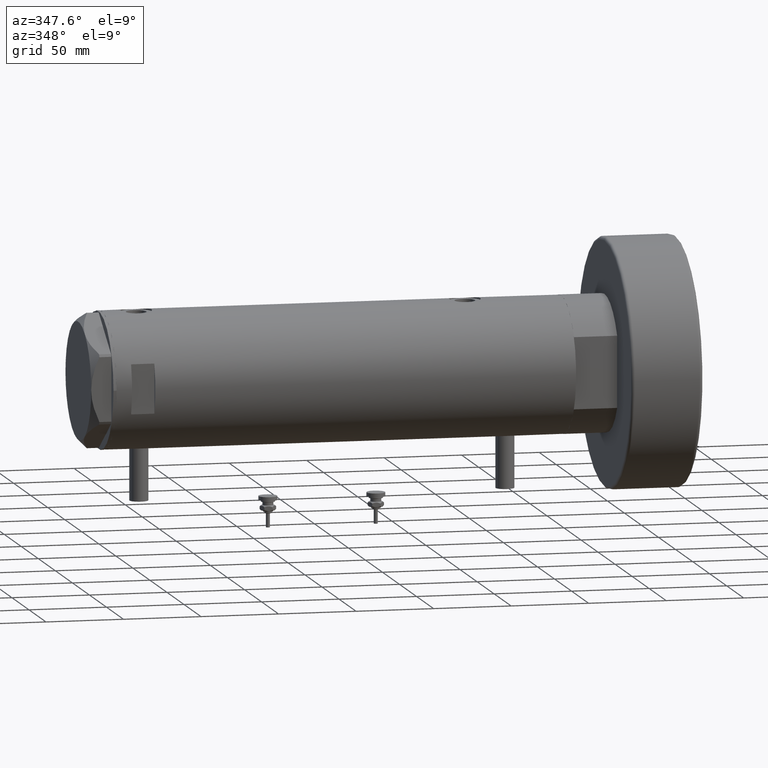
[diagram: clean part render]
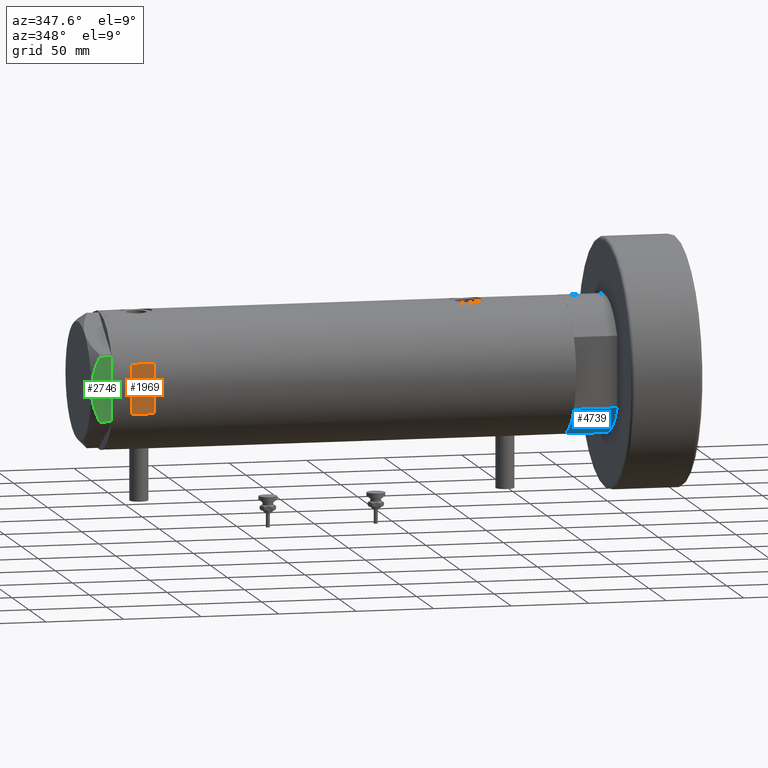
[diagram: same view with three faces highlighted in distinct colors, each labeled with its STEP entity id]
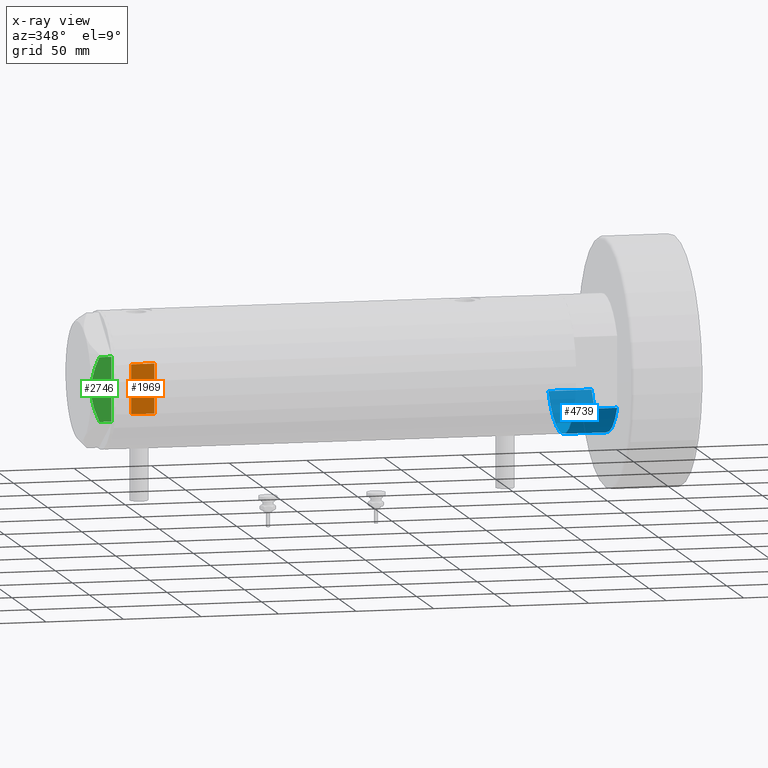
[diagram: x-ray of the same camera — body ghosted, the three highlighted faces saturated]
A machine part, auxiliary view with three faces highlighted in distinct colors.
The next image is the same camera in x-ray (body ghosted, the three faces saturated) — at least one of them is partly hidden behind the body in this view.
Their STEP definitions:

[orange] entity #1969 — the highlighted planar face has unit normal (-0, 1, 0).
#2 = VERTEX_POINT ( 'NONE', #5575 ) ;
#226 = EDGE_CURVE ( 'NONE', #2, #5331, #5549, .T. ) ;
#390 = CARTESIAN_POINT ( 'NONE',  ( 15.96871942267132027, -40.99999999999999289, 123.1999999999999744 ) ) ;
#574 = LINE ( 'NONE', #4498, #846 ) ;
#713 = AXIS2_PLACEMENT_3D ( 'NONE', #1264, #1226, #5192 ) ;
#840 = LINE ( 'NONE', #6233, #3529 ) ;
#842 = FACE_OUTER_BOUND ( 'NONE', #3680, .T. ) ;
#846 = VECTOR ( 'NONE', #4428, 1000.000000000000000 ) ;
#1130 = CARTESIAN_POINT ( 'NONE',  ( -15.96871942267132027, -40.99999999999999289, -148.1999999999999886 ) ) ;
#1191 = LINE ( 'NONE', #1684, #3412 ) ;
#1226 = DIRECTION ( 'NONE',  ( 0.000000000000000000, 1.000000000000000000, 0.000000000000000000 ) ) ;
#1264 = CARTESIAN_POINT ( 'NONE',  ( -44.00000000000000000, -40.99999999999999289, 138.1999999999999886 ) ) ;
#1374 = ORIENTED_EDGE ( 'NONE', *, *, #3612, .T. ) ;
#1684 = CARTESIAN_POINT ( 'NONE',  ( -44.00000000000000000, -40.99999999999999289, 123.1999999999999886 ) ) ;
#1969 = ADVANCED_FACE ( 'NONE', ( #842 ), #6139, .F. ) ;
#2763 = VERTEX_POINT ( 'NONE', #5572 ) ;
#2845 = ORIENTED_EDGE ( 'NONE', *, *, #5056, .T. ) ;
#2908 = CARTESIAN_POINT ( 'NONE',  ( -15.96871942267132027, -40.99999999999999289, 123.1999999999999744 ) ) ;
#3112 = DIRECTION ( 'NONE',  ( -0.000000000000000000, -0.000000000000000000, -1.000000000000000000 ) ) ;
#3174 = DIRECTION ( 'NONE',  ( 1.000000000000000000, -0.000000000000000000, -0.000000000000000000 ) ) ;
#3412 = VECTOR ( 'NONE', #5489, 1000.000000000000000 ) ;
#3529 = VECTOR ( 'NONE', #3174, 1000.000000000000000 ) ;
#3612 = EDGE_CURVE ( 'NONE', #5331, #3935, #1191, .T. ) ;
#3680 = EDGE_LOOP ( 'NONE', ( #5887, #1374, #2845, #3753 ) ) ;
#3753 = ORIENTED_EDGE ( 'NONE', *, *, #6126, .F. ) ;
#3935 = VERTEX_POINT ( 'NONE', #390 ) ;
#4297 = VECTOR ( 'NONE', #3112, 1000.000000000000000 ) ;
#4428 = DIRECTION ( 'NONE',  ( 0.000000000000000000, 0.000000000000000000, 1.000000000000000000 ) ) ;
#4498 = CARTESIAN_POINT ( 'NONE',  ( 15.96871942267132027, -40.99999999999999289, -148.1999999999999886 ) ) ;
#5056 = EDGE_CURVE ( 'NONE', #3935, #2763, #574, .T. ) ;
#5192 = DIRECTION ( 'NONE',  ( 0.000000000000000000, -0.000000000000000000, 1.000000000000000000 ) ) ;
#5331 = VERTEX_POINT ( 'NONE', #2908 ) ;
#5489 = DIRECTION ( 'NONE',  ( 1.000000000000000000, -0.000000000000000000, -0.000000000000000000 ) ) ;
#5549 = LINE ( 'NONE', #1130, #4297 ) ;
#5572 = CARTESIAN_POINT ( 'NONE',  ( 15.96871942267132027, -40.99999999999999289, 138.1999999999999886 ) ) ;
#5575 = CARTESIAN_POINT ( 'NONE',  ( -15.96871942267132027, -40.99999999999999289, 138.1999999999999886 ) ) ;
#5887 = ORIENTED_EDGE ( 'NONE', *, *, #226, .T. ) ;
#6126 = EDGE_CURVE ( 'NONE', #2, #2763, #840, .T. ) ;
#6139 = PLANE ( 'NONE',  #713 ) ;
#6233 = CARTESIAN_POINT ( 'NONE',  ( -44.00000000000000000, -40.99999999999999289, 138.1999999999999886 ) ) ;

[blue] entity #4739 — the highlighted cylindrical surface (partial cylindrical patch) has radius 44 mm, axis along (-1, -0, 0).
#3 = CARTESIAN_POINT ( 'NONE',  ( 23.01629857296780557, 37.50000000000000000, 0.000000000000000000 ) ) ;
#461 = VERTEX_POINT ( 'NONE', #4196 ) ;
#593 = EDGE_CURVE ( 'NONE', #785, #461, #1192, .T. ) ;
#711 = DIRECTION ( 'NONE',  ( -0.000000000000000000, -0.000000000000000000, 1.000000000000000000 ) ) ;
#785 = VERTEX_POINT ( 'NONE', #3 ) ;
#1192 = LINE ( 'NONE', #1651, #6262 ) ;
#1354 = DIRECTION ( 'NONE',  ( 1.000000000000000000, 0.000000000000000000, 0.000000000000000000 ) ) ;
#1386 = CARTESIAN_POINT ( 'NONE',  ( 23.01629857296780557, -37.50000000000000000, 0.000000000000000000 ) ) ;
#1651 = CARTESIAN_POINT ( 'NONE',  ( 23.01629857296780557, 37.50000000000000000, 0.000000000000000000 ) ) ;
#1669 = CYLINDRICAL_SURFACE ( 'NONE', #1994, 44.00000000000000000 ) ;
#1994 = AXIS2_PLACEMENT_3D ( 'NONE', #3641, #5601, #3157 ) ;
#2082 = CIRCLE ( 'NONE', #6086, 44.00000000000000000 ) ;
#2374 = VECTOR ( 'NONE', #6338, 1000.000000000000000 ) ;
#2747 = CARTESIAN_POINT ( 'NONE',  ( 23.01629857296780557, -37.50000000000000000, 27.89999999999999858 ) ) ;
#2901 = VERTEX_POINT ( 'NONE', #6315 ) ;
#3157 = DIRECTION ( 'NONE',  ( -1.000000000000000000, 0.000000000000000000, 0.000000000000000000 ) ) ;
#3224 = EDGE_CURVE ( 'NONE', #2901, #785, #5990, .T. ) ;
#3327 = ORIENTED_EDGE ( 'NONE', *, *, #3998, .F. ) ;
#3370 = EDGE_CURVE ( 'NONE', #2901, #6066, #4844, .T. ) ;
#3487 = DIRECTION ( 'NONE',  ( 1.000000000000000000, 0.000000000000000000, 0.000000000000000000 ) ) ;
#3495 = EDGE_LOOP ( 'NONE', ( #3327, #5172, #5847, #6243 ) ) ;
#3608 = DIRECTION ( 'NONE',  ( 0.000000000000000000, 0.000000000000000000, 1.000000000000000000 ) ) ;
#3641 = CARTESIAN_POINT ( 'NONE',  ( 0.000000000000000000, 0.000000000000000000, 27.89999999999999858 ) ) ;
#3998 = EDGE_CURVE ( 'NONE', #6066, #461, #2082, .T. ) ;
#4196 = CARTESIAN_POINT ( 'NONE',  ( 23.01629857296780557, 37.50000000000000000, 27.89999999999999858 ) ) ;
#4739 = ADVANCED_FACE ( 'NONE', ( #6085 ), #1669, .T. ) ;
#4844 = LINE ( 'NONE', #1386, #2374 ) ;
#4847 = AXIS2_PLACEMENT_3D ( 'NONE', #5751, #6141, #1354 ) ;
#5172 = ORIENTED_EDGE ( 'NONE', *, *, #3370, .F. ) ;
#5537 = CARTESIAN_POINT ( 'NONE',  ( 0.000000000000000000, 0.000000000000000000, 27.89999999999999858 ) ) ;
#5601 = DIRECTION ( 'NONE',  ( -0.000000000000000000, -0.000000000000000000, -1.000000000000000000 ) ) ;
#5751 = CARTESIAN_POINT ( 'NONE',  ( 0.000000000000000000, 0.000000000000000000, 0.000000000000000000 ) ) ;
#5847 = ORIENTED_EDGE ( 'NONE', *, *, #3224, .T. ) ;
#5990 = CIRCLE ( 'NONE', #4847, 44.00000000000000000 ) ;
#6066 = VERTEX_POINT ( 'NONE', #2747 ) ;
#6085 = FACE_OUTER_BOUND ( 'NONE', #3495, .T. ) ;
#6086 = AXIS2_PLACEMENT_3D ( 'NONE', #5537, #3608, #3487 ) ;
#6141 = DIRECTION ( 'NONE',  ( 0.000000000000000000, 0.000000000000000000, 1.000000000000000000 ) ) ;
#6243 = ORIENTED_EDGE ( 'NONE', *, *, #593, .T. ) ;
#6262 = VECTOR ( 'NONE', #711, 1000.000000000000000 ) ;
#6315 = CARTESIAN_POINT ( 'NONE',  ( 23.01629857296780557, -37.50000000000000000, 0.000000000000000000 ) ) ;
#6338 = DIRECTION ( 'NONE',  ( -0.000000000000000000, -0.000000000000000000, 1.000000000000000000 ) ) ;

[green] entity #2746 — the highlighted planar face has unit normal (-0, 1, 0).
#70 = DIRECTION ( 'NONE',  ( 3.183713056926429451E-16, -1.000000000000000000, 0.000000000000000000 ) ) ;
#129 = CARTESIAN_POINT ( 'NONE',  ( -37.75000000000000711, 21.79497266190837124, 13.00000000000000000 ) ) ;
#216 = CARTESIAN_POINT ( 'NONE',  ( -37.74999999999999289, -12.34877760086739862, 11.06613894200179260 ) ) ;
#280 = CARTESIAN_POINT ( 'NONE',  ( -37.75000000000000000, -17.40390235304479205, 9.187919079516763787 ) ) ;
#375 = CARTESIAN_POINT ( 'NONE',  ( -37.75000000000000000, -19.86857906850810096, 8.096480699986589258 ) ) ;
#449 = VERTEX_POINT ( 'NONE', #3248 ) ;
#618 = CARTESIAN_POINT ( 'NONE',  ( -37.75000000000000711, 21.79497266190837124, 0.000000000000000000 ) ) ;
#696 = CARTESIAN_POINT ( 'NONE',  ( -37.75000000000000000, -4.503994958793054337, 12.74237531377022670 ) ) ;
#776 = CARTESIAN_POINT ( 'NONE',  ( -37.74999999999999289, 11.46926194450821690, 11.30493988086503521 ) ) ;
#784 = LINE ( 'NONE', #1319, #2061 ) ;
#851 = CARTESIAN_POINT ( 'NONE',  ( -37.74999999999999289, -20.67497266190838090, 7.709124142616975206 ) ) ;
#1092 = ORIENTED_EDGE ( 'NONE', *, *, #5504, .T. ) ;
#1218 = CARTESIAN_POINT ( 'NONE',  ( -37.75000000000000000, 17.42329546264825524, 9.202188366597436442 ) ) ;
#1319 = CARTESIAN_POINT ( 'NONE',  ( -37.75000000000000711, 20.67497266190837024, 13.00000000000000000 ) ) ;
#1453 = ORIENTED_EDGE ( 'NONE', *, *, #2155, .T. ) ;
#1455 = DIRECTION ( 'NONE',  ( 0.000000000000000000, 0.000000000000000000, 1.000000000000000000 ) ) ;
#1534 = VECTOR ( 'NONE', #1455, 1000.000000000000000 ) ;
#1550 = EDGE_CURVE ( 'NONE', #3051, #1895, #2741, .T. ) ;
#1561 = VECTOR ( 'NONE', #70, 1000.000000000000000 ) ;
#1579 = ORIENTED_EDGE ( 'NONE', *, *, #2391, .F. ) ;
#1607 = PLANE ( 'NONE',  #5882 ) ;
#1666 = CARTESIAN_POINT ( 'NONE',  ( -37.75000000000000000, -0.9015134592203577490, 13.00000000000000178 ) ) ;
#1716 = CARTESIAN_POINT ( 'NONE',  ( -37.74999999999999289, -20.67497266190838090, 7.709124142616975206 ) ) ;
#1810 = CARTESIAN_POINT ( 'NONE',  ( -37.75000000000000000, 7.143641079404827288, 12.47474846747316946 ) ) ;
#1849 = EDGE_CURVE ( 'NONE', #449, #1901, #784, .T. ) ;
#1895 = VERTEX_POINT ( 'NONE', #1716 ) ;
#1901 = VERTEX_POINT ( 'NONE', #2686 ) ;
#2061 = VECTOR ( 'NONE', #2778, 1000.000000000000000 ) ;
#2103 = DIRECTION ( 'NONE',  ( -3.183713056926429451E-16, 1.000000000000000000, 0.000000000000000000 ) ) ;
#2155 = EDGE_CURVE ( 'NONE', #6225, #1895, #4319, .T. ) ;
#2181 = CARTESIAN_POINT ( 'NONE',  ( -37.74999999999999289, -14.04742653794399132, 10.50092616350622698 ) ) ;
#2336 = EDGE_LOOP ( 'NONE', ( #1579, #4390, #1092, #1453, #4535 ) ) ;
#2391 = EDGE_CURVE ( 'NONE', #449, #3051, #3044, .T. ) ;
#2658 = CARTESIAN_POINT ( 'NONE',  ( -37.74999999999999289, -7.161343005612803125, 12.36677985830371895 ) ) ;
#2686 = CARTESIAN_POINT ( 'NONE',  ( -37.75000000000000711, 20.67497266190837024, 0.000000000000000000 ) ) ;
#2741 = B_SPLINE_CURVE_WITH_KNOTS ( 'NONE', 3,
 ( #5075, #1666, #3640, #3155, #696, #2658, #4621, #216, #2181, #4142, #280, #4268, #375, #851 ),
 .UNSPECIFIED., .F., .F.,
 ( 4, 2, 2, 2, 2, 2, 4 ),
 ( 0.07749717587205659508, 0.08017617902235898986, 0.08285518217266138463, 0.08821318847326617418, 0.09357119477387096373, 0.09625019792417334463, 0.09892920107447573941 ),
 .UNSPECIFIED. ) ;
#2746 = ADVANCED_FACE ( 'NONE', ( #4537 ), #1607, .F. ) ;
#2778 = DIRECTION ( 'NONE',  ( 0.000000000000000000, 0.000000000000000000, -1.000000000000000000 ) ) ;
#3044 = B_SPLINE_CURVE_WITH_KNOTS ( 'NONE', 3,
 ( #3714, #5675, #1218, #3293, #3202, #6226, #776, #1810, #5149, #4692 ),
 .UNSPECIFIED., .F., .F.,
 ( 4, 2, 2, 2, 4 ),
 ( 0.05601050456479945983, 0.06138217239161374017, 0.06406800630502088034, 0.06675384021842802051, 0.07749717587205659508 ),
 .UNSPECIFIED. ) ;
#3051 = VERTEX_POINT ( 'NONE', #4495 ) ;
#3097 = DIRECTION ( 'NONE',  ( 1.000000000000000000, 3.183713056926429451E-16, -0.000000000000000000 ) ) ;
#3155 = CARTESIAN_POINT ( 'NONE',  ( -37.74999999999998579, -3.611424898442238351, 12.83826937481876662 ) ) ;
#3202 = CARTESIAN_POINT ( 'NONE',  ( -37.74999999999999289, 14.04433099034388199, 10.48027127384610857 ) ) ;
#3248 = CARTESIAN_POINT ( 'NONE',  ( -37.75000000000000711, 20.67497266190838090, 7.709124142616995634 ) ) ;
#3293 = CARTESIAN_POINT ( 'NONE',  ( -37.75000000000000000, 14.89874562435961103, 10.17375260246623903 ) ) ;
#3640 = CARTESIAN_POINT ( 'NONE',  ( -37.75000000000000000, -1.811728074765795338, 12.96720910498919999 ) ) ;
#3714 = CARTESIAN_POINT ( 'NONE',  ( -37.75000000000000711, 20.67497266190838090, 7.709124142616995634 ) ) ;
#4142 = CARTESIAN_POINT ( 'NONE',  ( -37.74999999999999289, -16.56731140591524110, 9.531835068628826235 ) ) ;
#4268 = CARTESIAN_POINT ( 'NONE',  ( -37.75000000000000000, -19.05362936076134517, 8.470554105526115762 ) ) ;
#4319 = LINE ( 'NONE', #5885, #1534 ) ;
#4390 = ORIENTED_EDGE ( 'NONE', *, *, #1849, .T. ) ;
#4481 = LINE ( 'NONE', #618, #1561 ) ;
#4495 = CARTESIAN_POINT ( 'NONE',  ( -37.75000000000000000, -1.201851678989727067E-14, 13.00000000000000000 ) ) ;
#4535 = ORIENTED_EDGE ( 'NONE', *, *, #1550, .F. ) ;
#4537 = FACE_OUTER_BOUND ( 'NONE', #2336, .T. ) ;
#4621 = CARTESIAN_POINT ( 'NONE',  ( -37.75000000000000000, -8.905753572404320195, 11.99914237172014886 ) ) ;
#4692 = CARTESIAN_POINT ( 'NONE',  ( -37.75000000000000000, -1.201851678989727067E-14, 13.00000000000000000 ) ) ;
#4840 = CARTESIAN_POINT ( 'NONE',  ( -37.74999999999999289, -20.67497266190837379, 0.000000000000000000 ) ) ;
#5075 = CARTESIAN_POINT ( 'NONE',  ( -37.75000000000000000, -1.201851678989727067E-14, 13.00000000000000000 ) ) ;
#5149 = CARTESIAN_POINT ( 'NONE',  ( -37.75000000000000711, 3.615248338761639868, 13.00000000000000355 ) ) ;
#5504 = EDGE_CURVE ( 'NONE', #1901, #6225, #4481, .T. ) ;
#5675 = CARTESIAN_POINT ( 'NONE',  ( -37.75000000000001421, 19.06473524669327446, 8.482612457517163307 ) ) ;
#5882 = AXIS2_PLACEMENT_3D ( 'NONE', #129, #3097, #2103 ) ;
#5885 = CARTESIAN_POINT ( 'NONE',  ( -37.74999999999999289, -20.67497266190837379, 13.00000000000000000 ) ) ;
#6225 = VERTEX_POINT ( 'NONE', #4840 ) ;
#6226 = CARTESIAN_POINT ( 'NONE',  ( -37.74999999999999289, 12.33018559404073855, 11.04557586999680474 ) ) ;